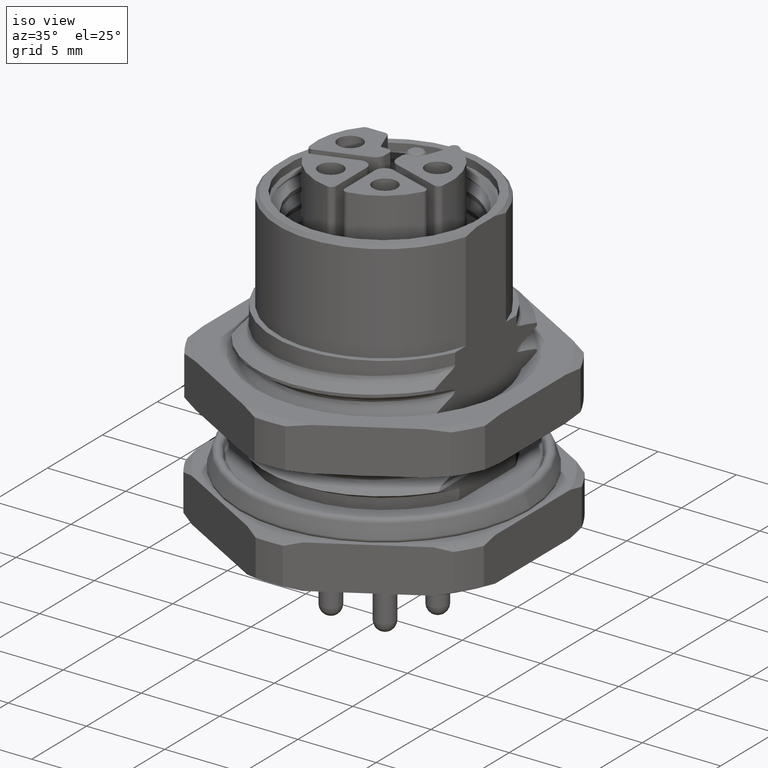
[diagram: clean part render]
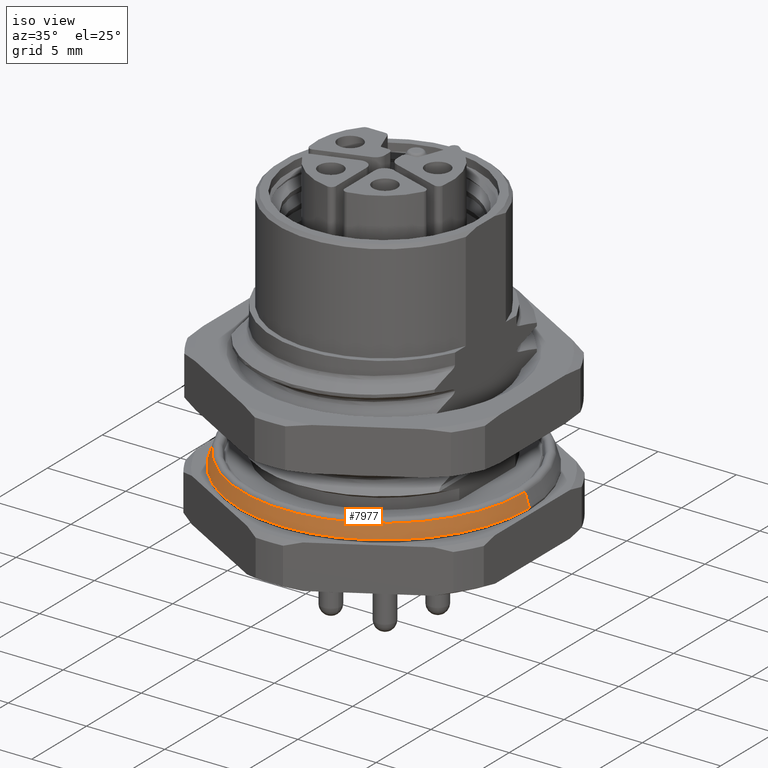
[diagram: same view with one face highlighted and labeled with its STEP entity id]
A machine part, iso view. The second image highlights one B-rep face of the part: STEP entity #7977.
In plain terms, the highlighted conical surface has half-angle 17 deg.
Its self-contained STEP definition (entity closure, byte-faithful):
#467=CARTESIAN_POINT('',(0.E0,0.E0,1.938557557084E-1));
#468=DIRECTION('',(0.E0,0.E0,-1.E0));
#469=DIRECTION('',(1.E0,0.E0,0.E0));
#470=AXIS2_PLACEMENT_3D('',#467,#468,#469);
#487=DIRECTION('',(2.923717047227E-1,0.E0,-9.563047559630E-1));
#488=VECTOR('',#487,8.838513160485E-1);
#489=CARTESIAN_POINT('',(9.020032597400E0,0.E0,1.039086972810E0));
#490=LINE('',#489,#488);
#496=DIRECTION('',(-2.923717047227E-1,0.E0,-9.563047559630E-1));
#497=VECTOR('',#496,8.838513160485E-1);
#498=CARTESIAN_POINT('',(-9.020032597400E0,0.E0,1.039086972810E0));
#499=LINE('',#498,#497);
#500=CARTESIAN_POINT('',(0.E0,0.E0,1.039086972810E0));
#501=DIRECTION('',(0.E0,0.E0,-1.E0));
#502=DIRECTION('',(1.E0,0.E0,0.E0));
#503=AXIS2_PLACEMENT_3D('',#500,#501,#502);
#7433=CARTESIAN_POINT('',(9.020032597400E0,0.E0,1.039086972810E0));
#7435=VERTEX_POINT('',#7433);
#7436=CARTESIAN_POINT('',(9.278445713394E0,0.E0,1.938557557084E-1));
#7437=VERTEX_POINT('',#7436);
#7439=CARTESIAN_POINT('',(-9.020032597400E0,0.E0,1.039086972810E0));
#7441=VERTEX_POINT('',#7439);
#7442=CARTESIAN_POINT('',(-9.278445713394E0,0.E0,1.938557557084E-1));
#7443=VERTEX_POINT('',#7442);
#7965=CARTESIAN_POINT('',(0.E0,0.E0,6.164713642591E-1));
#7966=DIRECTION('',(0.E0,0.E0,-1.E0));
#7967=DIRECTION('',(1.E0,0.E0,0.E0));
#7968=AXIS2_PLACEMENT_3D('',#7965,#7966,#7967);
#7969=CONICAL_SURFACE('',#7968,9.149239155397E0,1.7E1);
#7970=ORIENTED_EDGE('',*,*,#7955,.T.);
#7971=ORIENTED_EDGE('',*,*,#7930,.T.);
#7972=ORIENTED_EDGE('',*,*,#7959,.F.);
#7974=ORIENTED_EDGE('',*,*,#7973,.F.);
#7975=EDGE_LOOP('',(#7970,#7971,#7972,#7974));
#7976=FACE_OUTER_BOUND('',#7975,.F.);
#471=CIRCLE('',#470,9.278445713394E0);
#504=CIRCLE('',#503,9.020032597400E0);
#7930=EDGE_CURVE('',#7437,#7443,#471,.T.);
#7955=EDGE_CURVE('',#7435,#7437,#490,.T.);
#7959=EDGE_CURVE('',#7441,#7443,#499,.T.);
#7973=EDGE_CURVE('',#7435,#7441,#504,.T.);
#7977=ADVANCED_FACE('',(#7976),#7969,.T.);